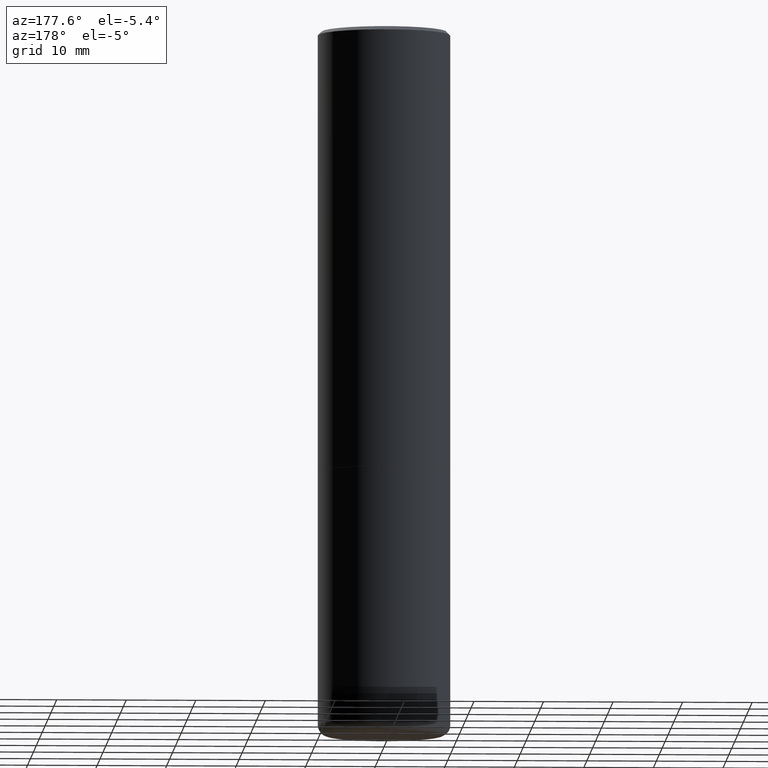
[diagram: clean part render]
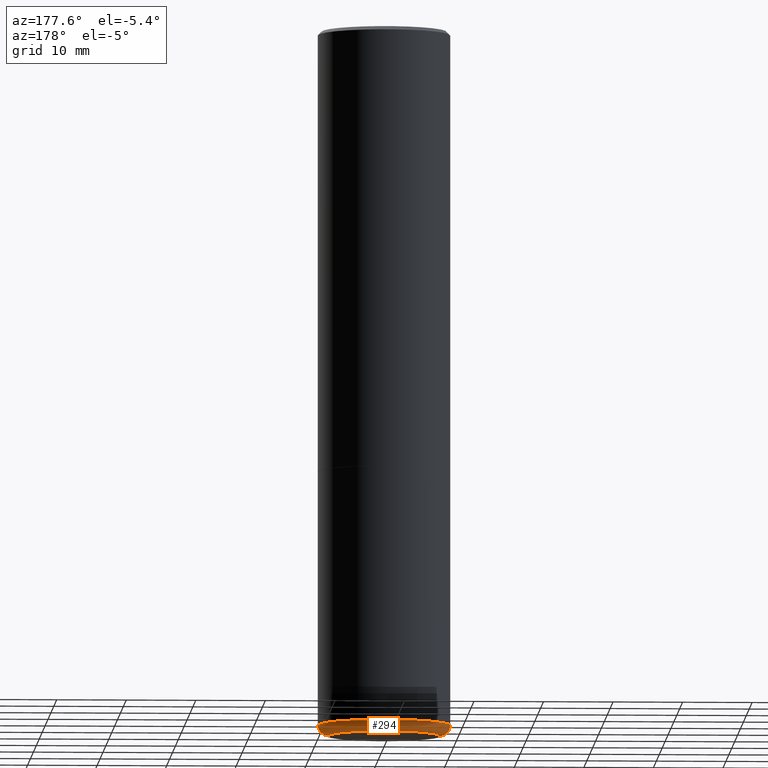
[diagram: same view with one face highlighted and labeled with its STEP entity id]
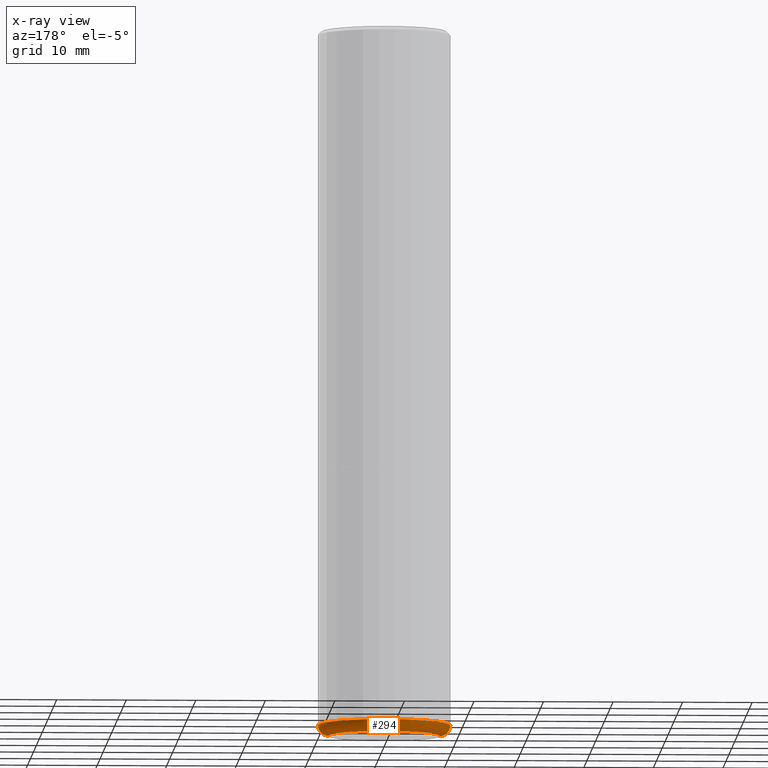
[diagram: x-ray of the same camera — body ghosted, the highlighted face saturated]
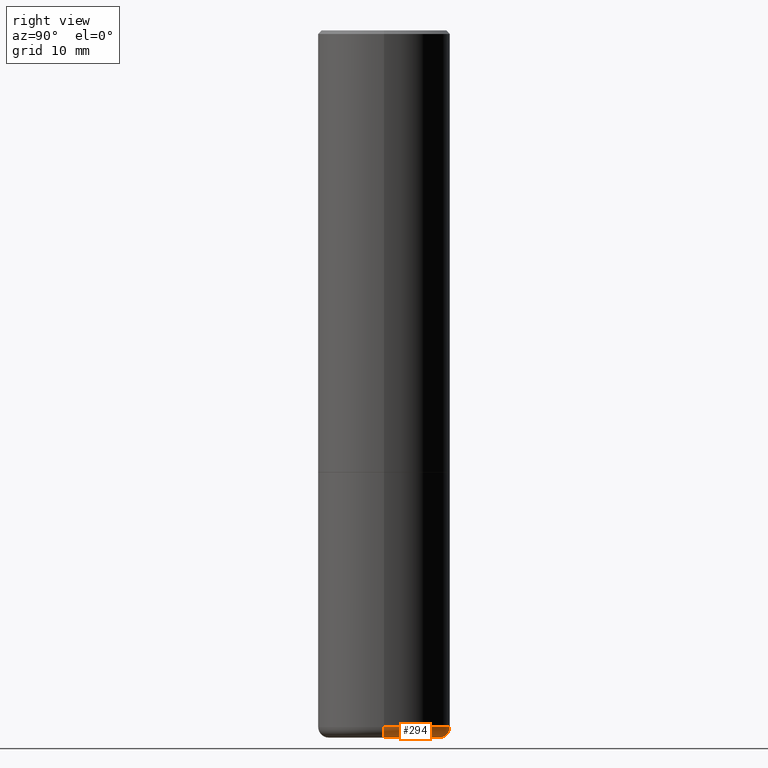
[diagram: same view with one face highlighted and labeled with its STEP entity id]
A machine part, auxiliary view. The second image highlights one B-rep face of the part: STEP entity #294.
The next image is the same camera in x-ray: the body ghosted, the highlighted face saturated — about 0% of this face is hidden behind the body in this view.
A second angle (right view) of the same face is appended — the face is thin or edge-on in the first view.
In plain terms, the highlighted toroidal blend (fillet) surface has major radius 8.001 mm and minor (blend) radius 1.524 mm.
Its self-contained STEP definition (entity closure, byte-faithful):
#8 = AXIS2_PLACEMENT_3D ( 'NONE', #158, #325, #77 ) ;
#24 = ORIENTED_EDGE ( 'NONE', *, *, #43, .F. ) ;
#26 = DIRECTION ( 'NONE',  ( 1.000000000000000000, -6.982962677686263555E-15, 4.883557194083111219E-29 ) ) ;
#31 = AXIS2_PLACEMENT_3D ( 'NONE', #125, #250, #407 ) ;
#38 = CARTESIAN_POINT ( 'NONE',  ( 0.3750000000000001110, -1.637504747917434403E-14, -3.939999999999999947 ) ) ;
#43 = EDGE_CURVE ( 'NONE', #290, #355, #307, .T. ) ;
#52 = DIRECTION ( 'NONE',  ( 1.000000000000000000, -6.982962677686279332E-15, 0.000000000000000000 ) ) ;
#77 = DIRECTION ( 'NONE',  ( 1.000000000000000000, -6.982962677686267499E-15, 0.000000000000000000 ) ) ;
#80 = CIRCLE ( 'NONE', #31, 0.06000000000000017819 ) ;
#88 = CIRCLE ( 'NONE', #8, 0.3150000000000000577 ) ;
#125 = CARTESIAN_POINT ( 'NONE',  ( -0.3150000000000000577, -1.151822685739767881E-14, -3.939999999999999947 ) ) ;
#150 = CARTESIAN_POINT ( 'NONE',  ( -0.3750000000000001110, -1.109190121594161832E-14, -3.939999999999999947 ) ) ;
#153 = DIRECTION ( 'NONE',  ( 1.000000000000000000, -6.982962677686269077E-15, 0.000000000000000000 ) ) ;
#158 = CARTESIAN_POINT ( 'NONE',  ( 9.781875224740547508E-29, -1.396592535537258391E-14, -4.000000000000000888 ) ) ;
#160 = ORIENTED_EDGE ( 'NONE', *, *, #311, .T. ) ;
#162 = AXIS2_PLACEMENT_3D ( 'NONE', #409, #345, #153 ) ;
#175 = DIRECTION ( 'NONE',  ( -6.982962677686266711E-15, -1.000000000000000000, 3.491481338843145583E-15 ) ) ;
#198 = EDGE_LOOP ( 'NONE', ( #413, #160, #202, #24 ) ) ;
#202 = ORIENTED_EDGE ( 'NONE', *, *, #332, .F. ) ;
#213 = DIRECTION ( 'NONE',  ( -2.445468806185136597E-29, 3.491481338843145583E-15, 1.000000000000000000 ) ) ;
#250 = DIRECTION ( 'NONE',  ( 7.105427357601001859E-15, 1.000000000000000000, -3.491481338843145583E-15 ) ) ;
#261 = CIRCLE ( 'NONE', #162, 0.3749999999999999445 ) ;
#277 = TOROIDAL_SURFACE ( 'NONE', #361, 0.3150000000000000577, 0.06000000000000017819 ) ;
#289 = CARTESIAN_POINT ( 'NONE',  ( -0.3150000000000000577, -1.140980847683494509E-14, -4.000000000000000888 ) ) ;
#290 = VERTEX_POINT ( 'NONE', #318 ) ;
#294 = ADVANCED_FACE ( 'NONE', ( #309 ), #277, .T. ) ;
#307 = CIRCLE ( 'NONE', #403, 0.06000000000000017819 ) ;
#309 = FACE_OUTER_BOUND ( 'NONE', #198, .T. ) ;
#311 = EDGE_CURVE ( 'NONE', #339, #319, #80, .T. ) ;
#318 = CARTESIAN_POINT ( 'NONE',  ( 0.3150000000000000577, -1.616555859884375729E-14, -4.000000000000000888 ) ) ;
#319 = VERTEX_POINT ( 'NONE', #150 ) ;
#325 = DIRECTION ( 'NONE',  ( -2.445468806185136597E-29, 3.491481338843145583E-15, 1.000000000000000000 ) ) ;
#332 = EDGE_CURVE ( 'NONE', #355, #319, #261, .T. ) ;
#339 = VERTEX_POINT ( 'NONE', #289 ) ;
#341 = CARTESIAN_POINT ( 'NONE',  ( 9.635147096369438236E-29, -1.375643647504199401E-14, -3.939999999999999947 ) ) ;
#345 = DIRECTION ( 'NONE',  ( -2.445468806185136597E-29, 3.491481338843145583E-15, 1.000000000000000000 ) ) ;
#355 = VERTEX_POINT ( 'NONE', #38 ) ;
#361 = AXIS2_PLACEMENT_3D ( 'NONE', #341, #213, #26 ) ;
#364 = EDGE_CURVE ( 'NONE', #290, #339, #88, .T. ) ;
#370 = CARTESIAN_POINT ( 'NONE',  ( 0.3150000000000000577, -1.595606971851316740E-14, -3.939999999999999947 ) ) ;
#403 = AXIS2_PLACEMENT_3D ( 'NONE', #370, #175, #52 ) ;
#407 = DIRECTION ( 'NONE',  ( -1.000000000000000000, 7.105427357601001859E-15, 0.000000000000000000 ) ) ;
#409 = CARTESIAN_POINT ( 'NONE',  ( 9.635147096369438236E-29, -1.375643647504199401E-14, -3.939999999999999947 ) ) ;
#413 = ORIENTED_EDGE ( 'NONE', *, *, #364, .T. ) ;